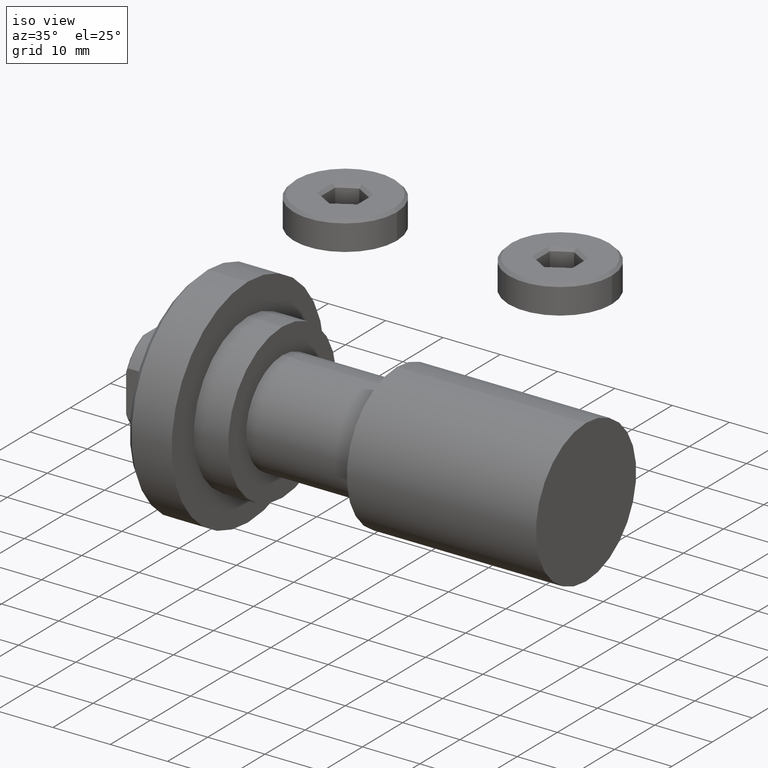
[diagram: clean part render]
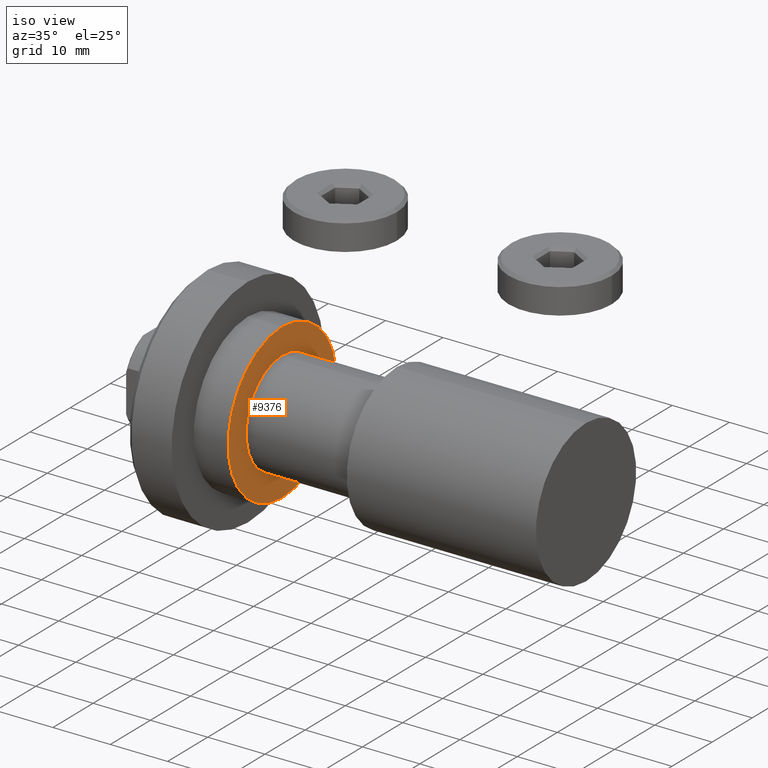
[diagram: same view with one face highlighted and labeled with its STEP entity id]
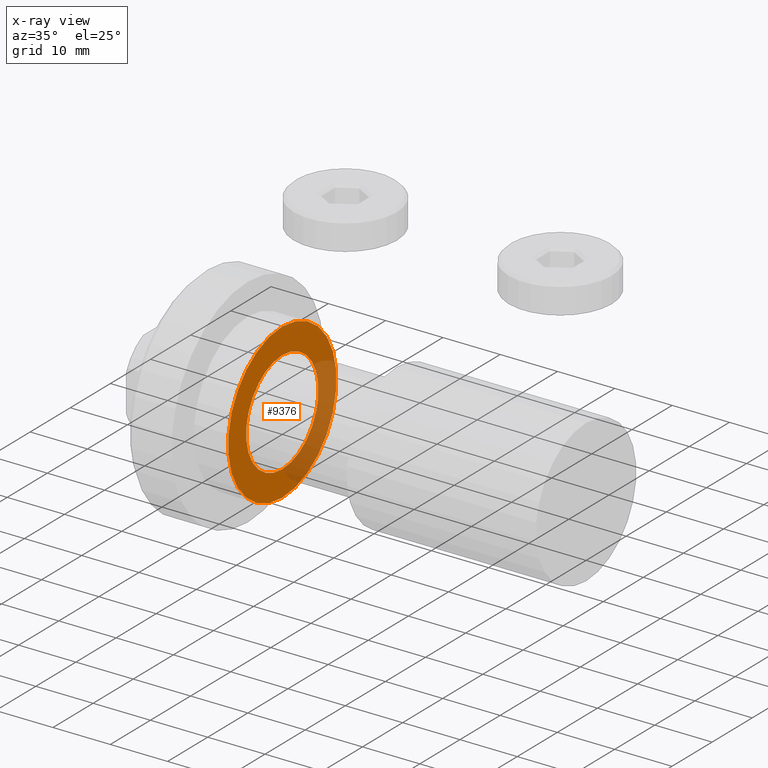
[diagram: x-ray of the same camera — body ghosted, the highlighted face saturated]
A machine part, iso view. The second image highlights one B-rep face of the part: STEP entity #9376.
The next image is the same camera in x-ray: the body ghosted, the highlighted face saturated — about 28% of this face is hidden behind the body in this view.
In plain terms, the highlighted planar face has unit normal (1, -0, -0).
Its self-contained STEP definition (entity closure, byte-faithful):
#248 = CARTESIAN_POINT ( 'NONE',  ( -11.00000000000000000, 0.000000000000000000, 0.000000000000000000 ) ) ;
#976 = EDGE_CURVE ( 'NONE', #5302, #7282, #34783, .T. ) ;
#2453 = CARTESIAN_POINT ( 'NONE',  ( -11.00000000000000000, 1.102182119232617517E-15, 9.000000000000000000 ) ) ;
#3060 = CIRCLE ( 'NONE', #28840, 13.50000000000000000 ) ;
#3242 = CARTESIAN_POINT ( 'NONE',  ( -11.00000000000000000, 0.000000000000000000, -13.50000000000000000 ) ) ;
#3474 = FACE_BOUND ( 'NONE', #31854, .T. ) ;
#3558 = DIRECTION ( 'NONE',  ( 1.000000000000000000, 0.000000000000000000, 0.000000000000000000 ) ) ;
#5302 = VERTEX_POINT ( 'NONE', #11195 ) ;
#7282 = VERTEX_POINT ( 'NONE', #2453 ) ;
#7291 = ORIENTED_EDGE ( 'NONE', *, *, #35028, .T. ) ;
#7394 = DIRECTION ( 'NONE',  ( 0.000000000000000000, 0.000000000000000000, 1.000000000000000000 ) ) ;
#7751 = AXIS2_PLACEMENT_3D ( 'NONE', #248, #39211, #7394 ) ;
#9186 = CARTESIAN_POINT ( 'NONE',  ( -11.00000000000000000, 0.000000000000000000, 0.000000000000000000 ) ) ;
#9376 = ADVANCED_FACE ( 'NONE', ( #3474, #31839 ), #31604, .T. ) ;
#11195 = CARTESIAN_POINT ( 'NONE',  ( -11.00000000000000000, 0.000000000000000000, -9.000000000000000000 ) ) ;
#14391 = DIRECTION ( 'NONE',  ( 0.000000000000000000, 0.000000000000000000, 1.000000000000000000 ) ) ;
#15793 = CIRCLE ( 'NONE', #40091, 9.000000000000000000 ) ;
#17628 = DIRECTION ( 'NONE',  ( 0.000000000000000000, 0.000000000000000000, -1.000000000000000000 ) ) ;
#17871 = ORIENTED_EDGE ( 'NONE', *, *, #45429, .T. ) ;
#20666 = DIRECTION ( 'NONE',  ( 1.000000000000000000, 0.000000000000000000, 0.000000000000000000 ) ) ;
#23008 = AXIS2_PLACEMENT_3D ( 'NONE', #32156, #3558, #17628 ) ;
#23218 = EDGE_CURVE ( 'NONE', #39409, #44937, #43355, .T. ) ;
#23250 = DIRECTION ( 'NONE',  ( 0.000000000000000000, 0.000000000000000000, 1.000000000000000000 ) ) ;
#25704 = CARTESIAN_POINT ( 'NONE',  ( -11.00000000000000000, 1.653273178848926867E-15, 13.50000000000000000 ) ) ;
#28108 = ORIENTED_EDGE ( 'NONE', *, *, #23218, .T. ) ;
#28840 = AXIS2_PLACEMENT_3D ( 'NONE', #9186, #41001, #23250 ) ;
#31273 = DIRECTION ( 'NONE',  ( 0.000000000000000000, 0.000000000000000000, -1.000000000000000000 ) ) ;
#31604 = PLANE ( 'NONE',  #7751 ) ;
#31839 = FACE_OUTER_BOUND ( 'NONE', #44044, .T. ) ;
#31854 = EDGE_LOOP ( 'NONE', ( #40378, #17871 ) ) ;
#32156 = CARTESIAN_POINT ( 'NONE',  ( -11.00000000000000000, 0.000000000000000000, 0.000000000000000000 ) ) ;
#34783 = CIRCLE ( 'NONE', #23008, 9.000000000000000000 ) ;
#35028 = EDGE_CURVE ( 'NONE', #44937, #39409, #3060, .T. ) ;
#38184 = AXIS2_PLACEMENT_3D ( 'NONE', #39729, #39282, #14391 ) ;
#39211 = DIRECTION ( 'NONE',  ( -1.000000000000000000, 0.000000000000000000, 0.000000000000000000 ) ) ;
#39282 = DIRECTION ( 'NONE',  ( -1.000000000000000000, 0.000000000000000000, 0.000000000000000000 ) ) ;
#39409 = VERTEX_POINT ( 'NONE', #25704 ) ;
#39729 = CARTESIAN_POINT ( 'NONE',  ( -11.00000000000000000, 0.000000000000000000, 0.000000000000000000 ) ) ;
#40091 = AXIS2_PLACEMENT_3D ( 'NONE', #41656, #20666, #31273 ) ;
#40378 = ORIENTED_EDGE ( 'NONE', *, *, #976, .T. ) ;
#41001 = DIRECTION ( 'NONE',  ( -1.000000000000000000, 0.000000000000000000, 0.000000000000000000 ) ) ;
#41656 = CARTESIAN_POINT ( 'NONE',  ( -11.00000000000000000, 0.000000000000000000, 0.000000000000000000 ) ) ;
#43355 = CIRCLE ( 'NONE', #38184, 13.50000000000000000 ) ;
#44044 = EDGE_LOOP ( 'NONE', ( #7291, #28108 ) ) ;
#44937 = VERTEX_POINT ( 'NONE', #3242 ) ;
#45429 = EDGE_CURVE ( 'NONE', #7282, #5302, #15793, .T. ) ;